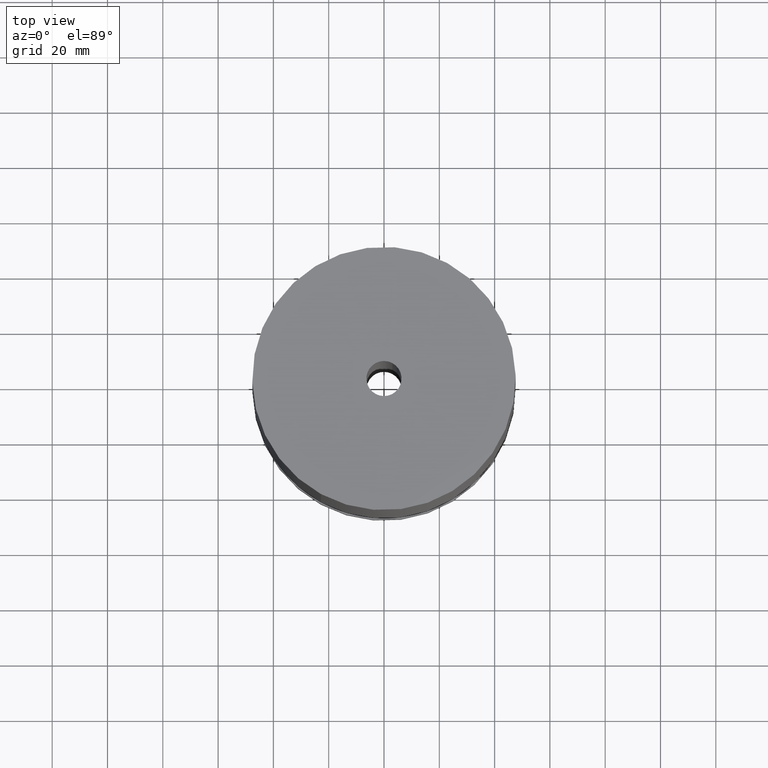
[diagram: clean part render]
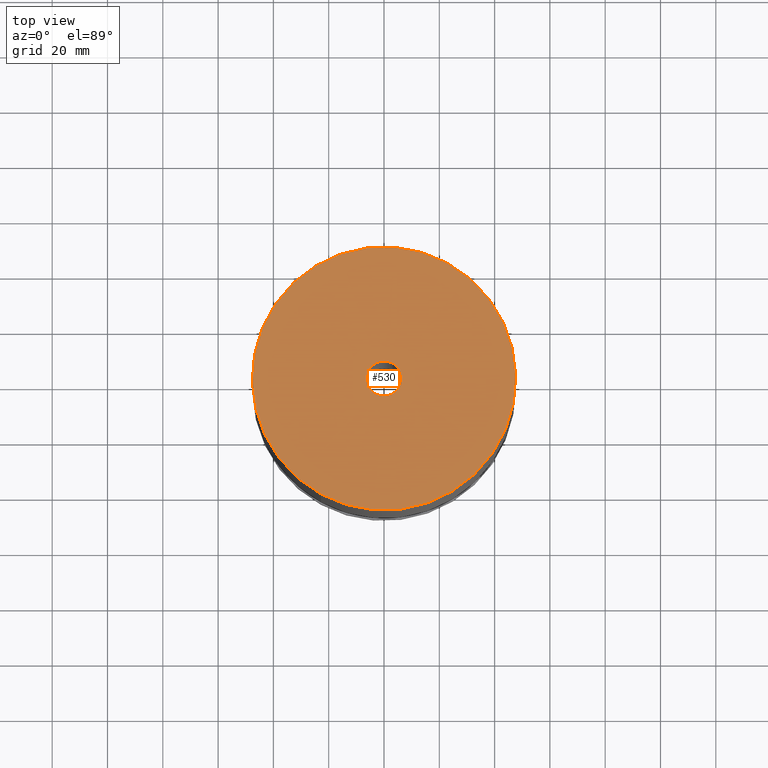
[diagram: same view with one face highlighted and labeled with its STEP entity id]
A machine part, top view. The second image highlights one B-rep face of the part: STEP entity #530.
In plain terms, the highlighted planar face has unit normal (0, 0, -1).
Its self-contained STEP definition (entity closure, byte-faithful):
#474=AXIS2_PLACEMENT_3D('Circle Axis2P3D',#472,#473,$) ;
#493=AXIS2_PLACEMENT_3D('Circle Axis2P3D',#491,#492,$) ;
#506=AXIS2_PLACEMENT_3D('Plane Axis2P3D',#503,#504,#505) ;
#514=AXIS2_PLACEMENT_3D('Circle Axis2P3D',#512,#513,$) ;
#523=AXIS2_PLACEMENT_3D('Circle Axis2P3D',#521,#522,$) ;
#469=CARTESIAN_POINT('Vertex',(0.898922884886,1.64546730355,8.75000000003)) ;
#472=CARTESIAN_POINT('Axis2P3D Location',(0.,0.,8.75000000003)) ;
#476=CARTESIAN_POINT('Vertex',(-0.898922884886,-1.64546730355,8.75000000003)) ;
#491=CARTESIAN_POINT('Axis2P3D Location',(0.,0.,8.75000000003)) ;
#503=CARTESIAN_POINT('Axis2P3D Location',(0.,1.87500000001,8.75000000003)) ;
#512=CARTESIAN_POINT('Axis2P3D Location',(0.,0.,8.75000000003)) ;
#516=CARTESIAN_POINT('Vertex',(-0.119856384652,-0.219395640473,8.75000000004)) ;
#518=CARTESIAN_POINT('Vertex',(0.119856384652,0.219395640473,8.75000000004)) ;
#521=CARTESIAN_POINT('Axis2P3D Location',(0.,0.,8.75000000003)) ;
#473=DIRECTION('Axis2P3D Direction',(0.,0.,-0.0393700787402)) ;
#492=DIRECTION('Axis2P3D Direction',(0.,0.,-0.0393700787402)) ;
#504=DIRECTION('Axis2P3D Direction',(0.,0.,-0.0393700787402)) ;
#505=DIRECTION('Axis2P3D XDirection',(0.0393700787402,0.,0.)) ;
#513=DIRECTION('Axis2P3D Direction',(0.,0.,-0.0393700787402)) ;
#522=DIRECTION('Axis2P3D Direction',(0.,0.,-0.0393700787402)) ;
#509=ORIENTED_EDGE('',*,*,#478,.F.) ;
#510=ORIENTED_EDGE('',*,*,#495,.F.) ;
#527=ORIENTED_EDGE('',*,*,#520,.T.) ;
#528=ORIENTED_EDGE('',*,*,#525,.T.) ;
#529=FACE_BOUND('',#526,.T.) ;
#530=ADVANCED_FACE('PartBody',(#511,#529),#507,.F.) ;
#475=CIRCLE('generated circle',#474,1.87500000001) ;
#494=CIRCLE('generated circle',#493,1.87500000001) ;
#515=CIRCLE('generated circle',#514,0.250000000001) ;
#524=CIRCLE('generated circle',#523,0.250000000001) ;
#478=EDGE_CURVE('',#470,#477,#475,.T.) ;
#495=EDGE_CURVE('',#477,#470,#494,.T.) ;
#520=EDGE_CURVE('',#517,#519,#515,.T.) ;
#525=EDGE_CURVE('',#519,#517,#524,.T.) ;
#508=EDGE_LOOP('',(#509,#510)) ;
#526=EDGE_LOOP('',(#527,#528)) ;
#511=FACE_OUTER_BOUND('',#508,.T.) ;
#507=PLANE('',#506) ;
#470=VERTEX_POINT('',#469) ;
#477=VERTEX_POINT('',#476) ;
#517=VERTEX_POINT('',#516) ;
#519=VERTEX_POINT('',#518) ;